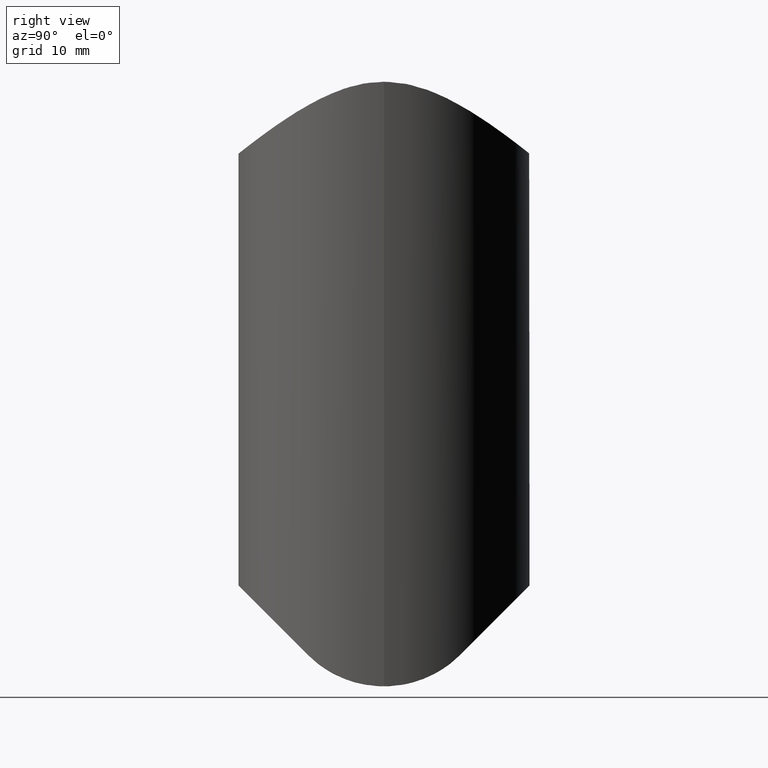
[diagram: clean part render]
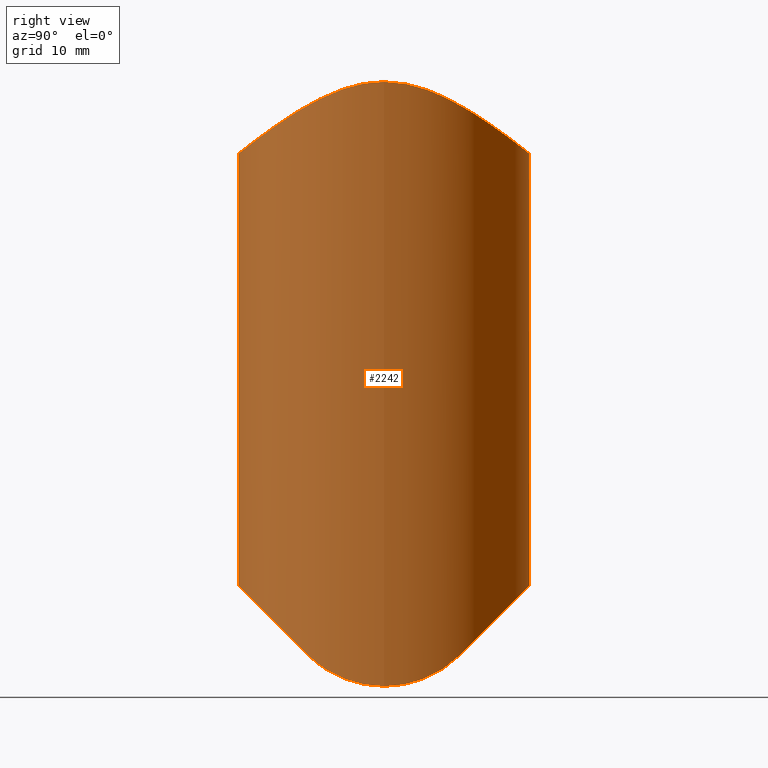
[diagram: same view with one face highlighted and labeled with its STEP entity id]
A machine part, right view. The second image highlights one B-rep face of the part: STEP entity #2242.
In plain terms, the highlighted cylindrical surface (bore or boss wall) has radius 16.85 mm, axis along (0, 0, 1).
Its self-contained STEP definition (entity closure, byte-faithful):
#16 = B_SPLINE_CURVE_WITH_KNOTS ( 'NONE', 3,
 ( #2618, #9802, #12688, #4018, #5204, #7553, #11053, #7407, #9407, #12483, #3064, #11181, #6338, #8245, #2993, #4054, #1122, #9067, #4187, #2069, #9196, #12099, #12148, #2191, #6226, #6054, #3034, #5025, #6092, #10091, #10180, #5198, #9107, #4096, #5160, #4140, #11151, #11239, #6182, #5114, #2112, #66, #108, #4013, #12191, #10046, #3075, #7117, #11195, #12237, #7201, #11104, #8202, #10134, #2149, #11063, #3164, #7244, #13106, #10225, #6139, #7067, #5068, #12286, #3120, #149, #24, #7164, #1166, #1038, #2026, #996, #8077, #8118, #1076, #8163, #9150, #372, #6410, #2323, #4270, #6317, #3301, #1307, #6360, #5378, #9418, #283, #11417, #11327, #8287, #8334, #6272, #12510, #10312, #6452, #12329, #327, #7371, #8370, #9370, #2277, #5243, #7463, #7418, #4322, #11375, #5425, #197, #4412, #5334, #12460, #3211, #10272, #2235, #7287, #5293, #10453, #12373, #10362 ),
 .UNSPECIFIED., .T., .F.,
 ( 4, 2, 2, 2, 2, 2, 2, 2, 2, 2, 2, 2, 2, 2, 2, 2, 2, 2, 2, 2, 2, 2, 2, 2, 2, 2, 2, 2, 2, 2, 2, 2, 2, 2, 2, 2, 2, 2, 2, 2, 2, 2, 2, 2, 2, 2, 2, 2, 2, 2, 2, 2, 2, 2, 2, 2, 2, 2, 2, 4 ),
 ( 0.000000000000000000, 0.003488034584528456120, 0.004360043230660566246, 0.005232051876792678108, 0.006976069169056897494, 0.008720086461321116880, 0.01046410375358534060, 0.01395213833811378978, 0.01569615563037801351, 0.01744017292264223723, 0.02092820750717068815, 0.02267222479943490840, 0.02441624209169913212, 0.02616025938396335584, 0.02790427667622757610, 0.02964829396849179982, 0.03052030261462391342, 0.03139231126075602701, 0.03488034584528446752, 0.03662436313754869471, 0.03836838042981291497, 0.04011239772207713522, 0.04185641501434136241, 0.04534444959886980292, 0.04708846689113402317, 0.04883248418339824343, 0.05057650147566247062, 0.05232051876792669087, 0.05406453606019091113, 0.05493654470632301778, 0.05580855335245512444, 0.05755257064471935163, 0.05842457929085146523, 0.05929658793698357883, 0.06278462252151202627, 0.06452863981377625346, 0.06627265710604048066, 0.06976069169056892116, 0.07150470898283316223, 0.07324872627509738943, 0.07673676085962585769, 0.07848077815189008488, 0.08022479544415431207, 0.08196881273641853927, 0.08371283002868276646, 0.08545684732094699365, 0.08632885596707910725, 0.08720086461321122084, 0.09068889919773968911, 0.09243291649000391630, 0.09417693378226815737, 0.09592095107453239844, 0.09766496836679663951, 0.1011530029513251216, 0.1028970202435893488, 0.1046410375358535899, 0.1063850548281178310, 0.1081290721203820721, 0.1098730894126463131, 0.1116171067049105403 ),
 .UNSPECIFIED. ) ;
#24 = CARTESIAN_POINT ( 'NONE',  ( -16.55476409013702010, -3.153307364517309974, 30.78157480463063322 ) ) ;
#66 = CARTESIAN_POINT ( 'NONE',  ( -9.994791040851373154, 13.57631378136462530, 25.32230521733956508 ) ) ;
#108 = CARTESIAN_POINT ( 'NONE',  ( -10.42069623016464242, 13.25206040174214372, 25.55676161521162726 ) ) ;
#149 = CARTESIAN_POINT ( 'NONE',  ( -16.60641569126075368, -2.869196171511602333, 30.84653100392362290 ) ) ;
#197 = CARTESIAN_POINT ( 'NONE',  ( 14.55453338318510248, -8.507048814336098275, 28.60647660889669552 ) ) ;
#216 = CARTESIAN_POINT ( 'NONE',  ( 14.33830603771036039, -8.850733301199310787, -35.17426669880069312 ) ) ;
#283 = CARTESIAN_POINT ( 'NONE',  ( -1.218559435307935868, -16.81613143072528516, 22.85194368814141797 ) ) ;
#284 = CARTESIAN_POINT ( 'NONE',  ( -14.33830603771040302, 8.850733301199255720, -35.17426669880074996 ) ) ;
#296 = CARTESIAN_POINT ( 'NONE',  ( 16.83308895431540719, 0.8668968601983598754, -38.81762087178290699 ) ) ;
#324 = VERTEX_POINT ( 'NONE', #9545 ) ;
#327 = CARTESIAN_POINT ( 'NONE',  ( 7.181140703023856098, -15.25348539933590075, 24.07089852805831143 ) ) ;
#372 = CARTESIAN_POINT ( 'NONE',  ( -10.46238427054360898, -13.21900461332810828, 25.58045668143140006 ) ) ;
#389 = CARTESIAN_POINT ( 'NONE',  ( 16.84951238709969346, 0.4425182323850114230, -38.83970405022883909 ) ) ;
#640 = AXIS2_PLACEMENT_3D ( 'NONE', #9557, #8563, #1537 ) ;
#910 = CARTESIAN_POINT ( 'NONE',  ( -15.46733673335011794, 6.694420789467711685, -36.90720040054484485 ) ) ;
#996 = CARTESIAN_POINT ( 'NONE',  ( -14.56266065314405900, -8.493040743961897121, 28.61418347935973472 ) ) ;
#997 = CARTESIAN_POINT ( 'NONE',  ( -15.87661191329260646, -5.656879868003255929, -37.49647845131602253 ) ) ;
#1038 = CARTESIAN_POINT ( 'NONE',  ( -15.30126194324313715, -7.077023726170883933, 29.34825942966148205 ) ) ;
#1076 = CARTESIAN_POINT ( 'NONE',  ( -12.76849391860199923, -11.04515648032478659, 27.07783980516392575 ) ) ;
#1106 = EDGE_CURVE ( 'NONE', #324, #10790, #8243, .T. ) ;
#1122 = CARTESIAN_POINT ( 'NONE',  ( 11.27517103013108368, 12.53305458214000900, 26.06571685462159493 ) ) ;
#1166 = CARTESIAN_POINT ( 'NONE',  ( -15.93264771859254481, -5.588807044560827997, 30.02599789362569638 ) ) ;
#1186 = CARTESIAN_POINT ( 'NONE',  ( 14.33830603771035683, 8.850733301199255720, -35.17426669880068602 ) ) ;
#1307 = CARTESIAN_POINT ( 'NONE',  ( -4.633092338830734569, -16.21049629165413108, 23.32993405497780870 ) ) ;
#1373 = CARTESIAN_POINT ( 'NONE',  ( 16.35442670238117913, -4.133194499908742436, -38.16694816004674351 ) ) ;
#1537 = DIRECTION ( 'NONE',  ( 1.000000000000000000, 0.000000000000000000, 0.000000000000000000 ) ) ;
#1727 = CARTESIAN_POINT ( 'NONE',  ( 6.992480507864952344, 20.75106867027853852, -23.27393132972146361 ) ) ;
#1808 = CARTESIAN_POINT ( 'NONE',  ( -14.33830603771036927, -8.850733301199310787, -35.17426669880068602 ) ) ;
#1967 = FACE_OUTER_BOUND ( 'NONE', #8226, .T. ) ;
#1986 = CARTESIAN_POINT ( 'NONE',  ( -15.01424861000645627, 7.682443621278093104, -36.23737664503784828 ) ) ;
#2026 = CARTESIAN_POINT ( 'NONE',  ( -15.06714064397420749, -7.562016873290339447, 29.10703687006266449 ) ) ;
#2069 = CARTESIAN_POINT ( 'NONE',  ( 8.708616580301018928, 14.46501147868135995, 24.67090779707388037 ) ) ;
#2112 = CARTESIAN_POINT ( 'NONE',  ( -9.108053657860992303, 14.18645489211024824, 24.87480421381646423 ) ) ;
#2149 = CARTESIAN_POINT ( 'NONE',  ( -16.37462835397577621, 4.014395240680865840, 30.55852878039925358 ) ) ;
#2191 = CARTESIAN_POINT ( 'NONE',  ( 4.608666158872870788, 16.21741378191370941, 23.32451087310631621 ) ) ;
#2235 = CARTESIAN_POINT ( 'NONE',  ( 16.37965679222789106, -3.993839940836798164, 30.56465935008198542 ) ) ;
#2242 = ADVANCED_FACE ( 'NONE', ( #10507, #1967 ), #11925, .T. ) ;
#2245 = ORIENTED_EDGE ( 'NONE', *, *, #12502, .F. ) ;
#2277 = CARTESIAN_POINT ( 'NONE',  ( 9.995180183919519123, -13.57606078780679582, 25.32249238037316630 ) ) ;
#2293 = CARTESIAN_POINT ( 'NONE',  ( 15.46132917525395278, 6.708196615195636703, -36.89841380930470649 ) ) ;
#2323 = CARTESIAN_POINT ( 'NONE',  ( -8.726966367399729307, -14.45335385199788902, 24.67956541262542558 ) ) ;
#2340 = CARTESIAN_POINT ( 'NONE',  ( 15.60525893755917259, 6.367337683683414795, -37.10741033663825306 ) ) ;
#2618 = CARTESIAN_POINT ( 'NONE',  ( 16.85000000000000853, 9.215718466126787689E-16, 31.15963953089540084 ) ) ;
#2788 = CARTESIAN_POINT ( 'NONE',  ( 14.33830603771035683, 8.850733301199255720, -35.17426669880068602 ) ) ;
#2818 = CARTESIAN_POINT ( 'NONE',  ( -14.68144642157978197, -8.294841301024534985, -35.73015869897545826 ) ) ;
#2863 = CARTESIAN_POINT ( 'NONE',  ( -15.46132917525391193, -6.708196615195717527, -36.89841380930470649 ) ) ;
#2878 = CARTESIAN_POINT ( 'NONE',  ( -6.992480507865020734, 20.75106867027851720, -23.27393132972148493 ) ) ;
#2993 = CARTESIAN_POINT ( 'NONE',  ( 12.75930261612571393, 11.05511620359124336, 27.07121819242074778 ) ) ;
#3034 = CARTESIAN_POINT ( 'NONE',  ( 2.363922115697564941, 16.69367290201030585, 22.94907085999129848 ) ) ;
#3036 = CARTESIAN_POINT ( 'NONE',  ( -16.53012753698191872, -3.371558497817315647, -38.40686790295602293 ) ) ;
#3064 = CARTESIAN_POINT ( 'NONE',  ( 15.06600544362908067, 7.564417200418764864, 29.10585610091618847 ) ) ;
#3075 = CARTESIAN_POINT ( 'NONE',  ( -13.39389977049335911, 10.27758179155229357, 27.57350999852649309 ) ) ;
#3120 = CARTESIAN_POINT ( 'NONE',  ( -16.69471313242517496, -2.300409139174631523, 30.95856817575938535 ) ) ;
#3164 = CARTESIAN_POINT ( 'NONE',  ( -16.69668131234897857, 2.340504293676494818, 30.96090336186388114 ) ) ;
#3211 = CARTESIAN_POINT ( 'NONE',  ( 15.90281625341952498, -5.597182806816921818, 30.00339353574807788 ) ) ;
#3240 = CARTESIAN_POINT ( 'NONE',  ( 14.33830603771035683, 8.850733301199255720, -35.17426669880068602 ) ) ;
#3301 = CARTESIAN_POINT ( 'NONE',  ( -5.715230646049785257, -15.86133264591338765, 23.60228133300067555 ) ) ;
#3404 = CARTESIAN_POINT ( 'NONE',  ( 15.01424861000640831, -7.682443621278178369, -36.23737664503782696 ) ) ;
#3443 = CARTESIAN_POINT ( 'NONE',  ( 15.88198811344664385, -5.641771128003791880, -37.50411123782776457 ) ) ;
#3830 = CARTESIAN_POINT ( 'NONE',  ( -15.00948873557859464, -7.691433850151985219, -36.23014511477212807 ) ) ;
#3866 =( BOUNDED_CURVE ( )  B_SPLINE_CURVE ( 3, ( #9880, #2878, #1727, #2788 ),
 .UNSPECIFIED., .F., .T. ) 
 B_SPLINE_CURVE_WITH_KNOTS ( ( 4, 4 ),
 ( 5.265416743293894086, 7.300953871065275713 ),
 .UNSPECIFIED. ) 
 CURVE ( )  GEOMETRIC_REPRESENTATION_ITEM ( )  RATIONAL_B_SPLINE_CURVE ( ( 1.000000000000000000, 0.6835107141918608242, 0.6835107141918608242, 1.000000000000000000 ) ) 
 REPRESENTATION_ITEM ( '' )  );
#3911 = B_SPLINE_CURVE_WITH_KNOTS ( 'NONE', 3,
 ( #1186, #12434, #5485, #2293, #2340, #5528, #9520, #9344, #6381, #8350, #9391, #296, #389, #8523, #5398, #7433, #8479, #7482, #1373, #7522, #3443, #9437, #6425, #3404, #10512, #7346 ),
 .UNSPECIFIED., .F., .F.,
 ( 4, 2, 2, 2, 2, 2, 2, 2, 2, 2, 2, 2, 4 ),
 ( 2.201117333616983738E-17, 0.002542715124299719902, 0.003814072686449564240, 0.005085430248599408579, 0.007628145372899099858, 0.008899502935048946364, 0.01017086049719879114, 0.01144221805934863764, 0.01271357562149848415, 0.01525629074579818063, 0.01652764830794802714, 0.01779900587009787885, 0.02034172099439758574 ),
 .UNSPECIFIED. ) ;
#3966 = VERTEX_POINT ( 'NONE', #3240 ) ;
#3968 = CARTESIAN_POINT ( 'NONE',  ( -16.71872701394078575, -2.139900186130101023, -38.66321094666894709 ) ) ;
#4013 = CARTESIAN_POINT ( 'NONE',  ( -11.23939550682409561, 12.56519014794332811, 26.04326683548215726 ) ) ;
#4018 = CARTESIAN_POINT ( 'NONE',  ( 16.43685454055621520, 3.719315587397255207, 30.63551266623164082 ) ) ;
#4054 = CARTESIAN_POINT ( 'NONE',  ( 11.66102715465259365, 12.17440635430119222, 26.31460542772481404 ) ) ;
#4056 = CARTESIAN_POINT ( 'NONE',  ( -16.84951238709969701, -0.4425182323851091226, -38.83970405022883199 ) ) ;
#4096 = CARTESIAN_POINT ( 'NONE',  ( -2.857251977327141645, 16.60853101359290562, 23.01642874321899868 ) ) ;
#4097 = CARTESIAN_POINT ( 'NONE',  ( -16.83499536586920442, 0.8272805678826435916, -38.82018638149625644 ) ) ;
#4140 = CARTESIAN_POINT ( 'NONE',  ( -4.563070841124321042, 16.26170907903825835, 23.29001353415834785 ) ) ;
#4187 = CARTESIAN_POINT ( 'NONE',  ( 10.03345984452741924, 13.54771931003610419, 25.34305937586326252 ) ) ;
#4255 = EDGE_CURVE ( 'NONE', #12705, #3966, #3866, .T. ) ;
#4270 = CARTESIAN_POINT ( 'NONE',  ( -7.784169194823971516, -14.98589303535731077, 24.27627521433478819 ) ) ;
#4322 = CARTESIAN_POINT ( 'NONE',  ( 12.73972826121695512, -11.07831283270831157, 27.05614233278994618 ) ) ;
#4412 = CARTESIAN_POINT ( 'NONE',  ( 15.06117546962990694, -7.573989371841300056, 29.10098247664966564 ) ) ;
#4820 = VERTEX_POINT ( 'NONE', #5633 ) ;
#4897 = CARTESIAN_POINT ( 'NONE',  ( -16.83308895431538943, -0.8668968601984576861, -38.81762087178290699 ) ) ;
#5025 = CARTESIAN_POINT ( 'NONE',  ( 1.196877386896234796, 16.81767900898140056, 22.85071367425837963 ) ) ;
#5068 = CARTESIAN_POINT ( 'NONE',  ( -16.82038613588199283, -1.153393338050496375, 31.12058398438669826 ) ) ;
#5071 = CARTESIAN_POINT ( 'NONE',  ( -14.68196051220269638, 8.294008467356222880, -35.73099153264372063 ) ) ;
#5114 = CARTESIAN_POINT ( 'NONE',  ( -8.647231188405044122, 14.47234560185099284, 24.66174318504227969 ) ) ;
#5160 = CARTESIAN_POINT ( 'NONE',  ( -3.145150991523118833, 16.55640114412084074, 23.05762998864650726 ) ) ;
#5198 = CARTESIAN_POINT ( 'NONE',  ( -1.993930436648130966, 16.73412311464078428, 22.91699069149763446 ) ) ;
#5204 = CARTESIAN_POINT ( 'NONE',  ( 16.37165564442995347, 3.996236745770081367, 30.55573089383639029 ) ) ;
#5243 = CARTESIAN_POINT ( 'NONE',  ( 10.42167427611399155, -13.25131939410903215, 25.55729806795227077 ) ) ;
#5264 = CARTESIAN_POINT ( 'NONE',  ( -14.33830603771036927, -8.850733301199310787, -35.17426669880068602 ) ) ;
#5293 = CARTESIAN_POINT ( 'NONE',  ( 16.69938508037639835, -2.320488834739478534, 30.96437022078895041 ) ) ;
#5334 = CARTESIAN_POINT ( 'NONE',  ( 15.29304033322279111, -7.094640924644827429, 29.33969853746524237 ) ) ;
#5378 = CARTESIAN_POINT ( 'NONE',  ( -2.958333458842771435, -16.59821557124749702, 23.02469510045565926 ) ) ;
#5398 = CARTESIAN_POINT ( 'NONE',  ( 16.83499536586919376, -0.8272805678827398479, -38.82018638149624934 ) ) ;
#5425 = CARTESIAN_POINT ( 'NONE',  ( 14.27882436257640109, -8.961815852038725438, 28.34994163430497949 ) ) ;
#5485 = CARTESIAN_POINT ( 'NONE',  ( 15.00948873557864260, 7.691433850151907059, -36.23014511477216359 ) ) ;
#5528 = CARTESIAN_POINT ( 'NONE',  ( 15.87661191329264199, 5.656879868003163558, -37.49647845131603674 ) ) ;
#5633 = CARTESIAN_POINT ( 'NONE',  ( 16.85000000000000142, 0.000000000000000000, 31.15963953089538663 ) ) ;
#5675 = ORIENTED_EDGE ( 'NONE', *, *, #9624, .F. ) ;
#5870 = ORIENTED_EDGE ( 'NONE', *, *, #4255, .F. ) ;
#5972 = CARTESIAN_POINT ( 'NONE',  ( -16.34816606358782920, -4.156873887331284045, -38.15829137401591709 ) ) ;
#6054 = CARTESIAN_POINT ( 'NONE',  ( 2.935858920294800889, 16.60217875596199377, 23.02156045030877607 ) ) ;
#6056 = CARTESIAN_POINT ( 'NONE',  ( -15.60525893755913351, -6.367337683683505389, -37.10741033663824595 ) ) ;
#6092 = CARTESIAN_POINT ( 'NONE',  ( 0.6127552656414515520, 16.84887386415253019, 22.82589506494136344 ) ) ;
#6139 = CARTESIAN_POINT ( 'NONE',  ( -16.84978754025977921, 0.3048055059478298467, 31.15936126864234268 ) ) ;
#6182 = CARTESIAN_POINT ( 'NONE',  ( -7.687648266521955875, 15.00411472148166325, 24.26113433971042355 ) ) ;
#6226 = CARTESIAN_POINT ( 'NONE',  ( 4.058234055895876935, 16.36405644674807647, 23.20927332844286539 ) ) ;
#6272 = CARTESIAN_POINT ( 'NONE',  ( 2.268151588632923321, -16.69918781907057337, 22.94468587042166163 ) ) ;
#6295 = CARTESIAN_POINT ( 'NONE',  ( -6.992480507864962114, -20.75106867027850299, -23.27393132972149559 ) ) ;
#6317 = CARTESIAN_POINT ( 'NONE',  ( -6.249404769565356510, -15.65820503941425734, 23.75985022990128570 ) ) ;
#6338 = CARTESIAN_POINT ( 'NONE',  ( 14.28582278510367587, 8.950453626376383198, 28.35639237131934820 ) ) ;
#6360 = CARTESIAN_POINT ( 'NONE',  ( -4.081890298430192132, -16.35819881878482107, 23.21388003208102901 ) ) ;
#6381 = CARTESIAN_POINT ( 'NONE',  ( 16.53012753698194359, 3.371558497817223277, -38.40686790295602293 ) ) ;
#6401 = B_SPLINE_CURVE_WITH_KNOTS ( 'NONE', 3,
 ( #1808, #2818, #3830, #2863, #6056, #997, #13108, #5972, #3036, #3968, #12101, #4897, #4056, #9109, #4097, #8080, #7029, #11067, #13066, #10092, #9032, #11025, #910, #1986, #5071, #12013 ),
 .UNSPECIFIED., .F., .F.,
 ( 4, 2, 2, 2, 2, 2, 2, 2, 2, 2, 2, 2, 4 ),
 ( 3.878959614448864246E-18, 0.002542715124299680437, 0.003814072686449524342, 0.005085430248599368680, 0.007628145372899069500, 0.008899502935048918609, 0.01017086049719876858, 0.01144221805934861683, 0.01271357562149846680, 0.01525629074579816155, 0.01652764830794800632, 0.01779900587009785110, 0.02034172099439755105 ),
 .UNSPECIFIED. ) ;
#6410 = CARTESIAN_POINT ( 'NONE',  ( -10.04117084798385306, -13.54184654649417929, 25.34730385353622140 ) ) ;
#6425 = CARTESIAN_POINT ( 'NONE',  ( 15.46733673335007708, -6.694420789467794286, -36.90720040054482354 ) ) ;
#6452 = CARTESIAN_POINT ( 'NONE',  ( 4.553832379075150705, -16.26448532530344337, 23.28783480138556072 ) ) ;
#7029 = CARTESIAN_POINT ( 'NONE',  ( -16.72453609044389466, 2.094939247328582166, -38.67107890297643280 ) ) ;
#7067 = CARTESIAN_POINT ( 'NONE',  ( -16.85041214219169348, -0.5736696189260906964, 31.16017932075633112 ) ) ;
#7117 = CARTESIAN_POINT ( 'NONE',  ( -14.27322093724248120, 8.970693881338300812, 28.34484749247271651 ) ) ;
#7164 = CARTESIAN_POINT ( 'NONE',  ( -16.26480880967746501, -4.547029472962409891, 30.42233871069397466 ) ) ;
#7201 = CARTESIAN_POINT ( 'NONE',  ( -15.28685858671097009, 7.107873146240879514, 29.33326496767993419 ) ) ;
#7244 = CARTESIAN_POINT ( 'NONE',  ( -16.78758264084560636, 1.477574321479142361, 31.07820441070628448 ) ) ;
#7287 = CARTESIAN_POINT ( 'NONE',  ( 16.61106262273884226, -2.883836446064370396, 30.85129415895204019 ) ) ;
#7346 = CARTESIAN_POINT ( 'NONE',  ( 14.33830603771036039, -8.850733301199310787, -35.17426669880069312 ) ) ;
#7371 = CARTESIAN_POINT ( 'NONE',  ( 7.683900622646631540, -15.00607227248791098, 24.25965049253109740 ) ) ;
#7407 = CARTESIAN_POINT ( 'NONE',  ( 15.90487270250956442, 5.591031431789052597, 30.00575465871712311 ) ) ;
#7418 = CARTESIAN_POINT ( 'NONE',  ( 11.63181766590042088, -12.20246350678815972, 26.29532094305800172 ) ) ;
#7433 = CARTESIAN_POINT ( 'NONE',  ( 16.77227231427963616, -1.671030676703070039, -38.73555923609374929 ) ) ;
#7463 = CARTESIAN_POINT ( 'NONE',  ( 11.24136333891619799, -12.56345934385020868, 26.04448110729708077 ) ) ;
#7482 = CARTESIAN_POINT ( 'NONE',  ( 16.53683952750829533, -3.340800802752324383, -38.41604231890471510 ) ) ;
#7522 = CARTESIAN_POINT ( 'NONE',  ( 16.00932760148209155, -5.270763429791964327, -37.68397860555657530 ) ) ;
#7553 = CARTESIAN_POINT ( 'NONE',  ( 16.22972857346203313, 4.538383754134050818, 30.38505024841372659 ) ) ;
#8077 = CARTESIAN_POINT ( 'NONE',  ( -14.29162032419619344, -8.941108165564608967, 28.36171386546280715 ) ) ;
#8080 = CARTESIAN_POINT ( 'NONE',  ( -16.77227231427964682, 1.671030676702972784, -38.73555923609375640 ) ) ;
#8118 = CARTESIAN_POINT ( 'NONE',  ( -13.42227891237702586, -10.23964040753259575, 27.59702980000847106 ) ) ;
#8163 = CARTESIAN_POINT ( 'NONE',  ( -11.66338928150708831, -12.17229251719185967, 26.31608926634027412 ) ) ;
#8202 = CARTESIAN_POINT ( 'NONE',  ( -15.89690430299303969, 5.613851343078686718, 29.99668573947647232 ) ) ;
#8226 = EDGE_LOOP ( 'NONE', ( #9761 ) ) ;
#8243 =( BOUNDED_CURVE ( )  B_SPLINE_CURVE ( 3, ( #216, #12347, #6295, #9308 ),
 .UNSPECIFIED., .F., .F. ) 
 B_SPLINE_CURVE_WITH_KNOTS ( ( 4, 4 ),
 ( 5.265416743293897639, 7.300953871065274825 ),
 .UNSPECIFIED. ) 
 CURVE ( )  GEOMETRIC_REPRESENTATION_ITEM ( )  RATIONAL_B_SPLINE_CURVE ( ( 1.000000000000000000, 0.6835107141918621565, 0.6835107141918621565, 1.000000000000000000 ) ) 
 REPRESENTATION_ITEM ( '' )  );
#8245 = CARTESIAN_POINT ( 'NONE',  ( 13.41307785266284647, 10.25198778674706901, 27.58938826224732210 ) ) ;
#8287 = CARTESIAN_POINT ( 'NONE',  ( 1.112588759422263207, -16.82326292577762317, 22.84627444567894372 ) ) ;
#8334 = CARTESIAN_POINT ( 'NONE',  ( 1.979650176026427344, -16.73582586802688255, 22.91564063871739165 ) ) ;
#8350 = CARTESIAN_POINT ( 'NONE',  ( 16.71872701394080707, 2.139900186130004212, -38.66321094666896130 ) ) ;
#8370 = CARTESIAN_POINT ( 'NONE',  ( 8.645399450756229953, -14.47347926943289487, 24.66089820652724640 ) ) ;
#8479 = CARTESIAN_POINT ( 'NONE',  ( 16.72453609044387690, -2.094939247328678977, -38.67107890297641148 ) ) ;
#8523 = CARTESIAN_POINT ( 'NONE',  ( 16.85046624748780530, -0.4045705269711078467, -38.84098812611517815 ) ) ;
#8563 = DIRECTION ( 'NONE',  ( 0.000000000000000000, 0.000000000000000000, 1.000000000000000000 ) ) ;
#9032 = CARTESIAN_POINT ( 'NONE',  ( -15.88198811344667938, 5.641771128003706615, -37.50411123782776457 ) ) ;
#9067 = CARTESIAN_POINT ( 'NONE',  ( 10.46001579497637479, 13.22100633410530790, 25.57904102727576756 ) ) ;
#9107 = CARTESIAN_POINT ( 'NONE',  ( -2.282024476962674520, 16.69729186359154482, 22.94618790349588267 ) ) ;
#9109 = CARTESIAN_POINT ( 'NONE',  ( -16.85046624748780530, 0.4045705269710094809, -38.84098812611518525 ) ) ;
#9150 = CARTESIAN_POINT ( 'NONE',  ( -11.27269707346088623, -12.53514532351717925, 26.06423822481189134 ) ) ;
#9196 = CARTESIAN_POINT ( 'NONE',  ( 7.760273162590312523, 14.99840731050423415, 24.26676567232548720 ) ) ;
#9308 = CARTESIAN_POINT ( 'NONE',  ( -14.33830603771036927, -8.850733301199310787, -35.17426669880068602 ) ) ;
#9344 = CARTESIAN_POINT ( 'NONE',  ( 16.34816606358785052, 4.156873887331193451, -38.15829137401590998 ) ) ;
#9370 = CARTESIAN_POINT ( 'NONE',  ( 9.107037764326616269, -14.18713912606667549, 24.87430076132086043 ) ) ;
#9391 = CARTESIAN_POINT ( 'NONE',  ( 16.76767870576904329, 1.717365636728614531, -38.72935409792208361 ) ) ;
#9407 = CARTESIAN_POINT ( 'NONE',  ( 15.71686554208496744, 6.098361508694393862, 29.79423311940516683 ) ) ;
#9418 = CARTESIAN_POINT ( 'NONE',  ( -2.385984480567156396, -16.69054347381467807, 22.95155038345631482 ) ) ;
#9437 = CARTESIAN_POINT ( 'NONE',  ( 15.61127932492867210, -6.352565287778801917, -37.11611495006814465 ) ) ;
#9520 = CARTESIAN_POINT ( 'NONE',  ( 16.00410922963964566, 5.286387831517710190, -37.67662098940166260 ) ) ;
#9545 = CARTESIAN_POINT ( 'NONE',  ( 14.33830603771036039, -8.850733301199310787, -35.17426669880069312 ) ) ;
#9557 = CARTESIAN_POINT ( 'NONE',  ( 0.000000000000000000, 0.000000000000000000, -41.50000000000000000 ) ) ;
#9624 = EDGE_CURVE ( 'NONE', #3966, #324, #3911, .T. ) ;
#9761 = ORIENTED_EDGE ( 'NONE', *, *, #9884, .F. ) ;
#9802 = CARTESIAN_POINT ( 'NONE',  ( 16.85000000000000497, 1.181816974257915875, 31.15963953089539373 ) ) ;
#9867 = EDGE_LOOP ( 'NONE', ( #5675, #5870, #2245, #10292 ) ) ;
#9880 = CARTESIAN_POINT ( 'NONE',  ( -14.33830603771040302, 8.850733301199255720, -35.17426669880074996 ) ) ;
#9884 = EDGE_CURVE ( 'NONE', #4820, #4820, #16, .T. ) ;
#10046 = CARTESIAN_POINT ( 'NONE',  ( -12.73527001919717172, 11.08326113548437242, 27.05287231180940921 ) ) ;
#10091 = CARTESIAN_POINT ( 'NONE',  ( -0.5491712452227679453, 16.85106615170428768, 22.82415261111907512 ) ) ;
#10092 = CARTESIAN_POINT ( 'NONE',  ( -16.00932760148211997, 5.270763429791871069, -37.68397860555658951 ) ) ;
#10134 = CARTESIAN_POINT ( 'NONE',  ( -16.23008893253742002, 4.561919175372502799, 30.38354184288010984 ) ) ;
#10180 = CARTESIAN_POINT ( 'NONE',  ( -1.128217563670329548, 16.82219263763235162, 22.84712505124552351 ) ) ;
#10225 = CARTESIAN_POINT ( 'NONE',  ( -16.84185556484301571, 0.6005636208193545489, 31.14895412995364765 ) ) ;
#10272 = CARTESIAN_POINT ( 'NONE',  ( 16.23544751361628258, -4.542935636299709756, 30.38992549851719716 ) ) ;
#10292 = ORIENTED_EDGE ( 'NONE', *, *, #1106, .F. ) ;
#10312 = CARTESIAN_POINT ( 'NONE',  ( 3.132493783242030094, -16.55881203355355069, 23.05572614964555100 ) ) ;
#10362 = CARTESIAN_POINT ( 'NONE',  ( 16.85000000000000853, 9.215718466126787689E-16, 31.15963953089540084 ) ) ;
#10453 = CARTESIAN_POINT ( 'NONE',  ( 16.81884699925302940, -1.174953663156957040, 31.11857145031866168 ) ) ;
#10507 = FACE_OUTER_BOUND ( 'NONE', #9867, .T. ) ;
#10512 = CARTESIAN_POINT ( 'NONE',  ( 14.68196051220266085, -8.294008467356288605, -35.73099153264371353 ) ) ;
#10790 = VERTEX_POINT ( 'NONE', #5264 ) ;
#11025 = CARTESIAN_POINT ( 'NONE',  ( -15.61127932492871295, 6.352565287778719316, -37.11611495006816597 ) ) ;
#11053 = CARTESIAN_POINT ( 'NONE',  ( 16.15279100600988471, 4.804723691820167453, 30.29388946145670403 ) ) ;
#11063 = CARTESIAN_POINT ( 'NONE',  ( -16.60739948715533387, 2.904841674388058070, 30.84666235395390643 ) ) ;
#11067 = CARTESIAN_POINT ( 'NONE',  ( -16.53683952750831665, 3.340800802752229792, -38.41604231890470800 ) ) ;
#11104 = CARTESIAN_POINT ( 'NONE',  ( -15.70777446802023825, 6.121742184620557303, 29.78418032654678527 ) ) ;
#11151 = CARTESIAN_POINT ( 'NONE',  ( -5.641703537684155556, 15.91699381315877027, 23.56069811230852196 ) ) ;
#11181 = CARTESIAN_POINT ( 'NONE',  ( 14.55938141211966474, 8.498784648752831572, 28.61105217326022654 ) ) ;
#11195 = CARTESIAN_POINT ( 'NONE',  ( -14.54874586222459776, 8.516875777173675388, 28.60102398438430527 ) ) ;
#11239 = CARTESIAN_POINT ( 'NONE',  ( -7.186026968266546078, 15.25115632092071394, 24.07267847966635443 ) ) ;
#11327 = CARTESIAN_POINT ( 'NONE',  ( 0.5324751576219249882, -16.85164486523669325, 22.82369264463234515 ) ) ;
#11375 = CARTESIAN_POINT ( 'NONE',  ( 13.39901119675901597, -10.27106971652703393, 27.57764098008038900 ) ) ;
#11417 = CARTESIAN_POINT ( 'NONE',  ( -0.6319328553525147552, -16.84820837133339566, 22.82642400450970754 ) ) ;
#11925 = CYLINDRICAL_SURFACE ( 'NONE', #640, 16.85000000000000142 ) ;
#12013 = CARTESIAN_POINT ( 'NONE',  ( -14.33830603771040302, 8.850733301199255720, -35.17426669880074996 ) ) ;
#12099 = CARTESIAN_POINT ( 'NONE',  ( 6.222044402171041710, 15.66912741060789571, 23.75140684822395087 ) ) ;
#12101 = CARTESIAN_POINT ( 'NONE',  ( -16.76767870576903974, -1.717365636728711564, -38.72935409792206940 ) ) ;
#12148 = CARTESIAN_POINT ( 'NONE',  ( 5.688972128401093009, 15.87072492547270741, 23.59498164516586627 ) ) ;
#12191 = CARTESIAN_POINT ( 'NONE',  ( -11.62899900790144692, 12.20510966927489704, 26.29349027139104322 ) ) ;
#12237 = CARTESIAN_POINT ( 'NONE',  ( -15.05504931669177715, 7.586083919874819337, 29.09481137540909756 ) ) ;
#12286 = CARTESIAN_POINT ( 'NONE',  ( -16.73161153233589715, -2.014690303523576809, 31.00595582820875862 ) ) ;
#12329 = CARTESIAN_POINT ( 'NONE',  ( 5.634496390818593881, -15.91965278890738666, 23.55863149411854707 ) ) ;
#12347 = CARTESIAN_POINT ( 'NONE',  ( 6.992480507864962114, -20.75106867027850299, -23.27393132972149914 ) ) ;
#12373 = CARTESIAN_POINT ( 'NONE',  ( 16.85000000000000853, -0.5909084871289564944, 31.15963953089540439 ) ) ;
#12434 = CARTESIAN_POINT ( 'NONE',  ( 14.68144642157982460, 8.294841301024476365, -35.73015869897548669 ) ) ;
#12460 = CARTESIAN_POINT ( 'NONE',  ( 15.71384907628826255, -6.106223029898144361, 29.79088222309723122 ) ) ;
#12483 = CARTESIAN_POINT ( 'NONE',  ( 15.29744147855247682, 7.085065967862639091, 29.34430271791988076 ) ) ;
#12502 = EDGE_CURVE ( 'NONE', #10790, #12705, #6401, .T. ) ;
#12510 = CARTESIAN_POINT ( 'NONE',  ( 2.844109948040148161, -16.61079239678445063, 23.01464079235726601 ) ) ;
#12688 = CARTESIAN_POINT ( 'NONE',  ( 16.72742372598743898, 2.326311567315081597, 30.99540954334985798 ) ) ;
#12705 = VERTEX_POINT ( 'NONE', #284 ) ;
#13066 = CARTESIAN_POINT ( 'NONE',  ( -16.35442670238119689, 4.133194499908647401, -38.16694816004673640 ) ) ;
#13106 = CARTESIAN_POINT ( 'NONE',  ( -16.81069167463624225, 1.187190359631229875, 31.10829370408668026 ) ) ;
#13108 = CARTESIAN_POINT ( 'NONE',  ( -16.00410922963961369, -5.286387831517794567, -37.67662098940164839 ) ) ;